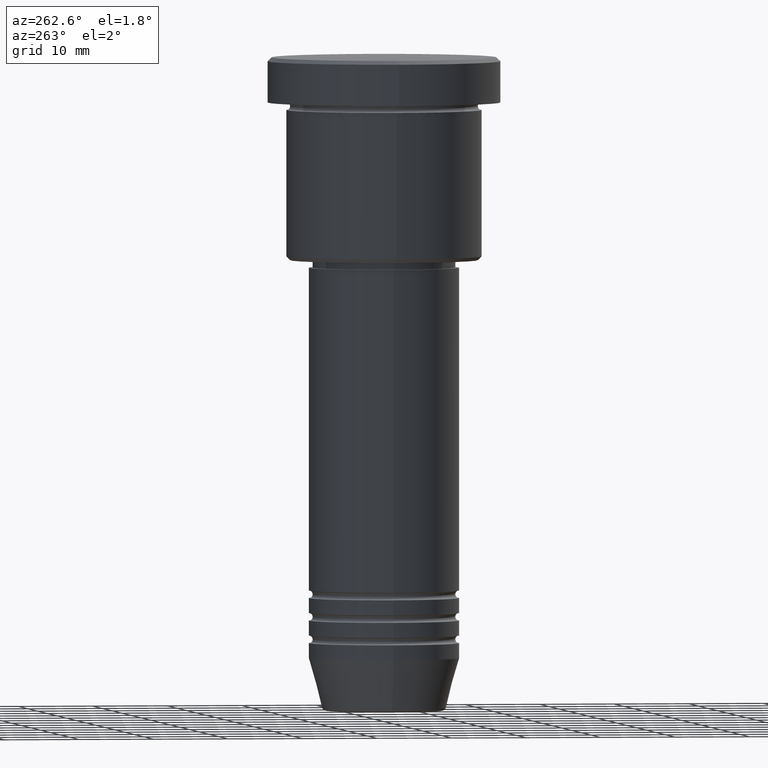
[diagram: clean part render]
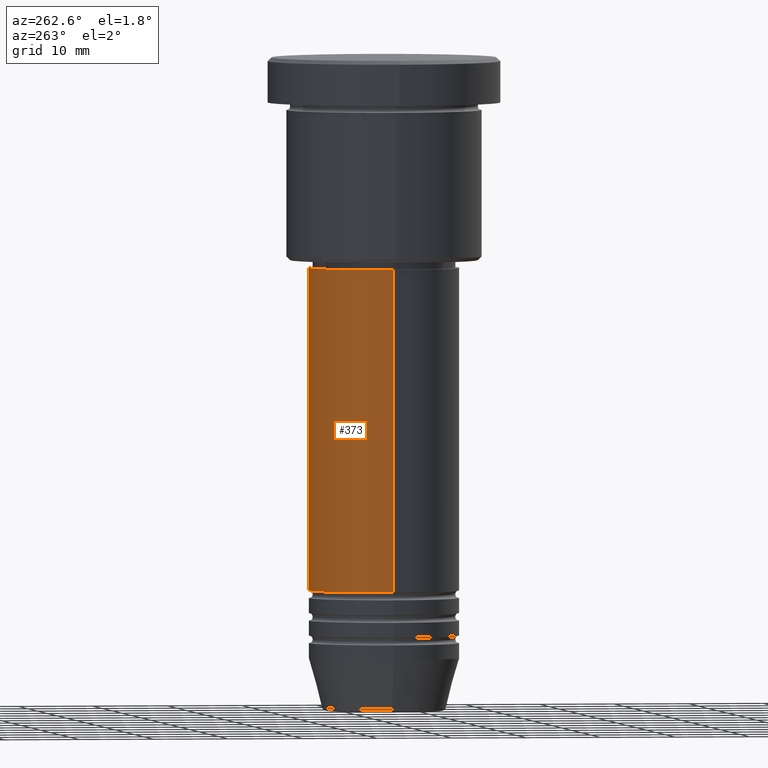
[diagram: same view with one face highlighted and labeled with its STEP entity id]
A machine part, auxiliary view. The second image highlights one B-rep face of the part: STEP entity #373.
In plain terms, the highlighted cylindrical surface (partial cylindrical patch) has radius 10 mm, axis along (-0, -0, 1).
Its self-contained STEP definition (entity closure, byte-faithful):
#41 = CIRCLE ( 'NONE', #699, 10.00000000000000000 ) ;
#64 = CARTESIAN_POINT ( 'NONE',  ( 10.00000000000000000, 0.000000000000000000, 0.000000000000000000 ) ) ;
#105 = CARTESIAN_POINT ( 'NONE',  ( 0.000000000000000000, 0.000000000000000000, 0.000000000000000000 ) ) ;
#160 = CARTESIAN_POINT ( 'NONE',  ( 0.000000000000000000, 0.000000000000000000, -70.99999999999997158 ) ) ;
#179 = LINE ( 'NONE', #64, #949 ) ;
#231 = VERTEX_POINT ( 'NONE', #836 ) ;
#251 = ORIENTED_EDGE ( 'NONE', *, *, #912, .T. ) ;
#314 = EDGE_CURVE ( 'NONE', #231, #615, #41, .T. ) ;
#370 = DIRECTION ( 'NONE',  ( -0.000000000000000000, -0.000000000000000000, 1.000000000000000000 ) ) ;
#373 = ADVANCED_FACE ( 'NONE', ( #469 ), #563, .T. ) ;
#390 = EDGE_CURVE ( 'NONE', #645, #1146, #435, .T. ) ;
#417 = DIRECTION ( 'NONE',  ( -0.000000000000000000, -0.000000000000000000, 1.000000000000000000 ) ) ;
#419 = CARTESIAN_POINT ( 'NONE',  ( 0.000000000000000000, 0.000000000000000000, -27.99999999999996803 ) ) ;
#435 = CIRCLE ( 'NONE', #531, 10.00000000000000000 ) ;
#469 = FACE_OUTER_BOUND ( 'NONE', #791, .T. ) ;
#494 = VECTOR ( 'NONE', #1095, 1000.000000000000000 ) ;
#531 = AXIS2_PLACEMENT_3D ( 'NONE', #160, #777, #886 ) ;
#563 = CYLINDRICAL_SURFACE ( 'NONE', #667, 10.00000000000000000 ) ;
#603 = DIRECTION ( 'NONE',  ( 1.000000000000000000, 0.000000000000000000, 0.000000000000000000 ) ) ;
#614 = ORIENTED_EDGE ( 'NONE', *, *, #314, .F. ) ;
#615 = VERTEX_POINT ( 'NONE', #726 ) ;
#645 = VERTEX_POINT ( 'NONE', #1032 ) ;
#667 = AXIS2_PLACEMENT_3D ( 'NONE', #105, #370, #1116 ) ;
#699 = AXIS2_PLACEMENT_3D ( 'NONE', #419, #1141, #603 ) ;
#726 = CARTESIAN_POINT ( 'NONE',  ( -10.00000000000000000, 1.224646799147353256E-15, -27.99999999999996803 ) ) ;
#777 = DIRECTION ( 'NONE',  ( -0.000000000000000000, -0.000000000000000000, 1.000000000000000000 ) ) ;
#791 = EDGE_LOOP ( 'NONE', ( #1138, #251, #614, #1052 ) ) ;
#836 = CARTESIAN_POINT ( 'NONE',  ( 10.00000000000000000, 0.000000000000000000, -27.99999999999996803 ) ) ;
#875 = CARTESIAN_POINT ( 'NONE',  ( -10.00000000000000000, 1.224646799147353256E-15, -70.99999999999997158 ) ) ;
#886 = DIRECTION ( 'NONE',  ( 1.000000000000000000, 0.000000000000000000, 0.000000000000000000 ) ) ;
#912 = EDGE_CURVE ( 'NONE', #1146, #615, #918, .T. ) ;
#918 = LINE ( 'NONE', #1106, #494 ) ;
#949 = VECTOR ( 'NONE', #417, 1000.000000000000000 ) ;
#1032 = CARTESIAN_POINT ( 'NONE',  ( 10.00000000000000000, 0.000000000000000000, -70.99999999999997158 ) ) ;
#1052 = ORIENTED_EDGE ( 'NONE', *, *, #1099, .F. ) ;
#1095 = DIRECTION ( 'NONE',  ( -0.000000000000000000, -0.000000000000000000, 1.000000000000000000 ) ) ;
#1099 = EDGE_CURVE ( 'NONE', #645, #231, #179, .T. ) ;
#1106 = CARTESIAN_POINT ( 'NONE',  ( -10.00000000000000000, 1.224646799147353256E-15, 0.000000000000000000 ) ) ;
#1116 = DIRECTION ( 'NONE',  ( 1.000000000000000000, 0.000000000000000000, 0.000000000000000000 ) ) ;
#1138 = ORIENTED_EDGE ( 'NONE', *, *, #390, .T. ) ;
#1141 = DIRECTION ( 'NONE',  ( -0.000000000000000000, -0.000000000000000000, 1.000000000000000000 ) ) ;
#1146 = VERTEX_POINT ( 'NONE', #875 ) ;